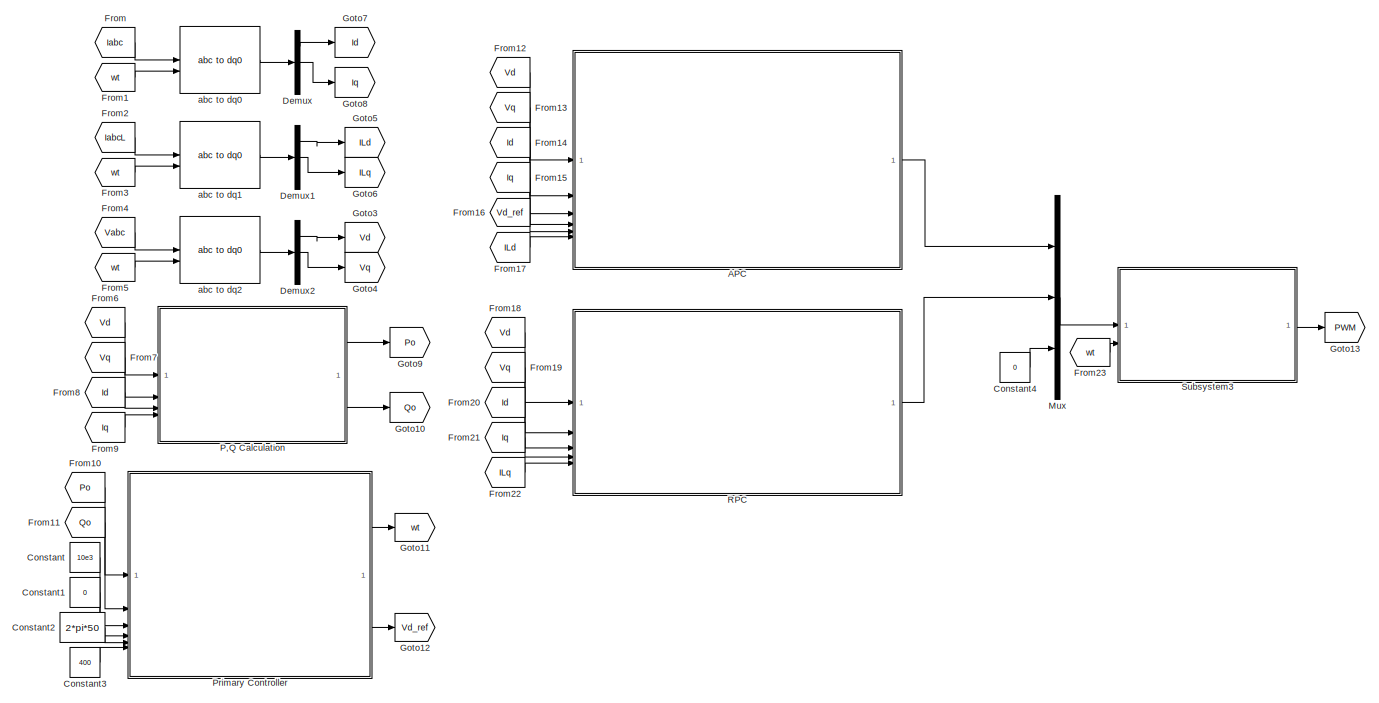
[diagram: root canvas - part 1/2, right side, full height]
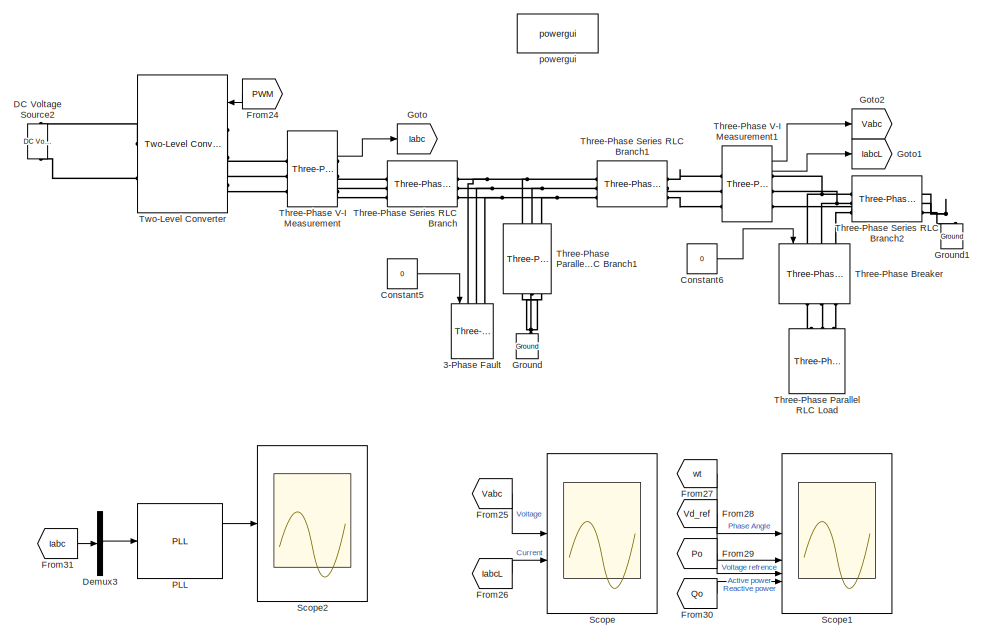
[diagram: root canvas - part 2/2, left side, full height]
MODEL slx_b3368cec2925
KIND model
CONFIG AbsTol = auto
CONFIG EnableMultiTasking = off
CONFIG FixedStep = auto
CONFIG MaxStep = 1e-4
CONFIG MinStep = auto
CONFIG RelTol = 1e-3
CONFIG SampleTimeConstraint = Unconstrained
CONFIG SolverName = ode23t
CONFIG StartTime = 0.0
CONFIG StopTime = 0.4
BLOCK [Reference] 3-Phase Fault  REF=spsThreePhaseFaultLib/Three-Phase Fault
  LibrarySourceBlock = sps_lib/Power Grid Elements/Three-Phase Fault
  NameLocation = right
  SourceBlock = spsThreePhaseFaultLib/Three-Phase Fault
  SourceType = Three-Phase Fault
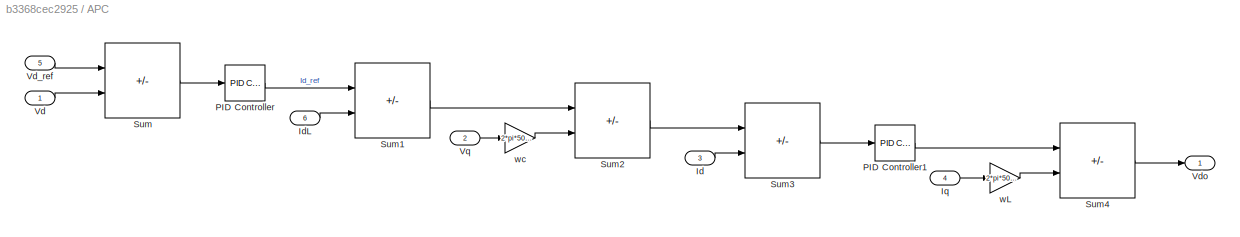
BLOCK [SubSystem] APC
BLOCK [Inport] APC/Id
  Port = 3
BLOCK [Inport] APC/IdL
  Port = 6
BLOCK [Inport] APC/Iq
  Port = 4
BLOCK [Reference] APC/PID Controller  REF=slpidlib/PID Controller
  LibrarySourceBlock = simulink/Continuous/PID Controller
  SourceBlock = slpidlib/PID Controller
  SourceType = PID 1dof
BLOCK [Reference] APC/PID Controller1  REF=slpidlib/PID Controller
  LibrarySourceBlock = simulink/Continuous/PID Controller
  SourceBlock = slpidlib/PID Controller
  SourceType = PID 1dof
BLOCK [Sum] APC/Sum
  IconShape = rectangular
  Inputs = +-
BLOCK [Sum] APC/Sum1
  IconShape = rectangular
  Inputs = +-
BLOCK [Sum] APC/Sum2
  IconShape = rectangular
  Inputs = +-
BLOCK [Sum] APC/Sum3
  IconShape = rectangular
  Inputs = +-
BLOCK [Sum] APC/Sum4
  IconShape = rectangular
  Inputs = +-
BLOCK [Inport] APC/Vd
BLOCK [Inport] APC/Vd_ref
  Port = 5
BLOCK [Outport] APC/Vdo
BLOCK [Inport] APC/Vq
  Port = 2
BLOCK [Gain] APC/wL
  Gain = 2*pi*50*10.2e-3
BLOCK [Gain] APC/wc
  Gain = 2*pi*50*9.94e-6
BLOCK [Constant] Constant
  Value = 10e3
BLOCK [Constant] Constant1
  Value = 0
BLOCK [Constant] Constant2
  Value = 2*pi*50
BLOCK [Constant] Constant3
  Value = 400
BLOCK [Constant] Constant4
  Value = 0
BLOCK [Constant] Constant5
  Value = 0
BLOCK [Constant] Constant6
  Value = 0
BLOCK [Reference] DC Voltage Source2  REF=spsDCVoltageSourceLib/DC Voltage Source
  LibrarySourceBlock = sps_lib/Sources/DC Voltage Source
  SourceBlock = spsDCVoltageSourceLib/DC Voltage Source
  SourceType = DC Voltage Source
BLOCK [Demux] Demux
  Outputs = 3
BLOCK [Demux] Demux1
  Outputs = 3
BLOCK [Demux] Demux2
  Outputs = 3
BLOCK [Demux] Demux3
  Outputs = 3
BLOCK [From] From
  GotoTag = Iabc
BLOCK [From] From1
  GotoTag = wt
BLOCK [From] From10
  GotoTag = Po
BLOCK [From] From11
  GotoTag = Qo
BLOCK [From] From12
  GotoTag = Vd
BLOCK [From] From13
  GotoTag = Vq
BLOCK [From] From14
  GotoTag = Id
BLOCK [From] From15
  GotoTag = Iq
BLOCK [From] From16
  GotoTag = Vd_ref
BLOCK [From] From17
  GotoTag = ILd
BLOCK [From] From18
  GotoTag = Vd
BLOCK [From] From19
  GotoTag = Vq
BLOCK [From] From2
  GotoTag = IabcL
BLOCK [From] From20
  GotoTag = Id
BLOCK [From] From21
  GotoTag = Iq
BLOCK [From] From22
  GotoTag = ILq
BLOCK [From] From23
  GotoTag = wt
BLOCK [From] From24
  GotoTag = PWM
BLOCK [From] From25
  GotoTag = Vabc
BLOCK [From] From26
  GotoTag = IabcL
BLOCK [From] From27
  GotoTag = wt
BLOCK [From] From28
  GotoTag = Vd_ref
BLOCK [From] From29
  GotoTag = Po
BLOCK [From] From3
  GotoTag = wt
BLOCK [From] From30
  GotoTag = Qo
BLOCK [From] From31
  GotoTag = Iabc
BLOCK [From] From4
  GotoTag = Vabc
BLOCK [From] From5
  GotoTag = wt
BLOCK [From] From6
  GotoTag = Vd
BLOCK [From] From7
  GotoTag = Vq
BLOCK [From] From8
  GotoTag = Id
BLOCK [From] From9
  GotoTag = Iq
BLOCK [Goto] Goto
  GotoTag = Iabc
  NameLocation = right
BLOCK [Goto] Goto1
  GotoTag = IabcL
  NameLocation = right
BLOCK [Goto] Goto10
  GotoTag = Qo
BLOCK [Goto] Goto11
  GotoTag = wt
BLOCK [Goto] Goto12
  GotoTag = Vd_ref
BLOCK [Goto] Goto13
  GotoTag = PWM
BLOCK [Goto] Goto2
  GotoTag = Vabc
  NameLocation = right
BLOCK [Goto] Goto3
  GotoTag = Vd
BLOCK [Goto] Goto4
  GotoTag = Vq
BLOCK [Goto] Goto5
  GotoTag = ILd
BLOCK [Goto] Goto6
  GotoTag = ILq
BLOCK [Goto] Goto7
  GotoTag = Id
BLOCK [Goto] Goto8
  GotoTag = Iq
BLOCK [Goto] Goto9
  GotoTag = Po
BLOCK [Reference] Ground  REF=spsGroundLib/Ground
  LibrarySourceBlock = sps_lib/Utilities/Ground
  NameLocation = right
  SourceBlock = spsGroundLib/Ground
  SourceType = Ground
BLOCK [Reference] Ground1  REF=spsGroundLib/Ground
  LibrarySourceBlock = sps_lib/Utilities/Ground
  NameLocation = right
  SourceBlock = spsGroundLib/Ground
  SourceType = Ground
BLOCK [Mux] Mux
  DisplayOption = bar
  Inputs = 3
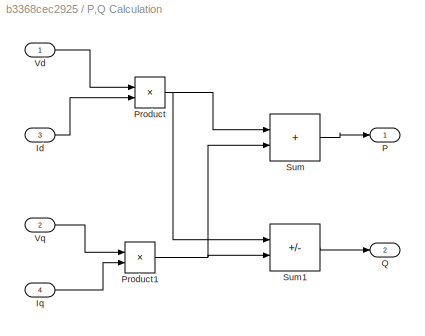
BLOCK [SubSystem] P,Q Calculation
BLOCK [Inport] P,Q Calculation/Id
  Port = 3
BLOCK [Inport] P,Q Calculation/Iq
  Port = 4
BLOCK [Outport] P,Q Calculation/P
BLOCK [Product] P,Q Calculation/Product
BLOCK [Product] P,Q Calculation/Product1
BLOCK [Outport] P,Q Calculation/Q
  Port = 2
BLOCK [Sum] P,Q Calculation/Sum
  IconShape = rectangular
BLOCK [Sum] P,Q Calculation/Sum1
  IconShape = rectangular
  Inputs = -+
BLOCK [Inport] P,Q Calculation/Vd
BLOCK [Inport] P,Q Calculation/Vq
  Port = 2
BLOCK [Reference] PLL  REF=spsPLLLib/PLL
  LibrarySourceBlock = sps_lib/Control/PLL
  SourceBlock = spsPLLLib/PLL
  SourceType = PLL
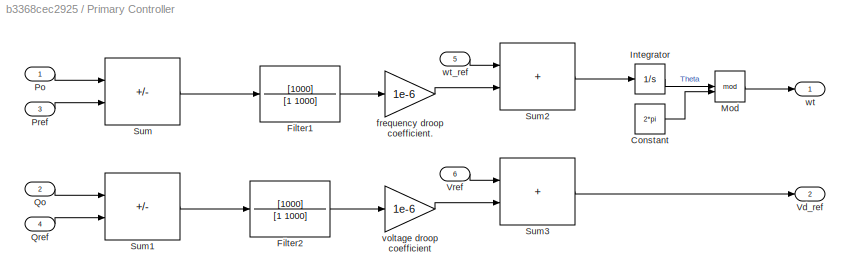
BLOCK [SubSystem] Primary Controller
BLOCK [Constant] Primary Controller/Constant
  Value = 2*pi
BLOCK [TransferFcn] Primary Controller/Filter1
  Denominator = [1 1000]
  Numerator = [1000]
BLOCK [TransferFcn] Primary Controller/Filter2
  Denominator = [1 1000]
  Numerator = [1000]
BLOCK [Integrator] Primary Controller/Integrator
BLOCK [Math] Primary Controller/Mod
  Operator = mod
BLOCK [Inport] Primary Controller/Po
BLOCK [Inport] Primary Controller/Pref
  Port = 3
BLOCK [Inport] Primary Controller/Qo
  Port = 2
BLOCK [Inport] Primary Controller/Qref
  Port = 4
BLOCK [Sum] Primary Controller/Sum
  IconShape = rectangular
  Inputs = -+
BLOCK [Sum] Primary Controller/Sum1
  IconShape = rectangular
  Inputs = -+
BLOCK [Sum] Primary Controller/Sum2
  IconShape = rectangular
BLOCK [Sum] Primary Controller/Sum3
  IconShape = rectangular
BLOCK [Outport] Primary Controller/Vd_ref
  Port = 2
BLOCK [Inport] Primary Controller/Vref
  Port = 6
BLOCK [Gain] Primary Controller/frequency droop coefficient.
  Gain = 1e-6
BLOCK [Gain] Primary Controller/voltage droop coefficient
  Gain = 1e-6
BLOCK [Outport] Primary Controller/wt
BLOCK [Inport] Primary Controller/wt_ref
  Port = 5
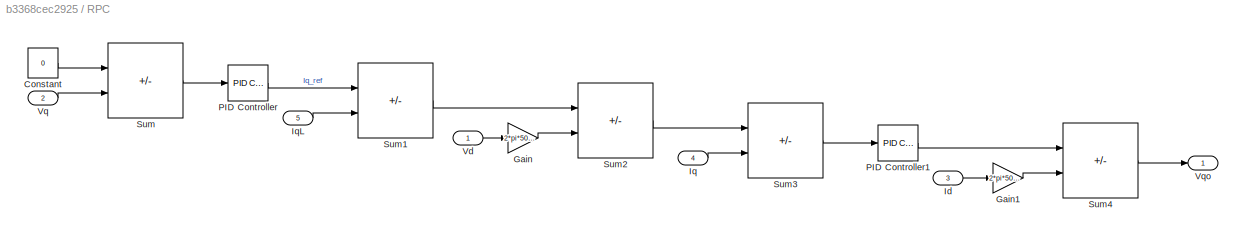
BLOCK [SubSystem] RPC
BLOCK [Constant] RPC/Constant
  Value = 0
BLOCK [Gain] RPC/Gain
  Gain = 2*pi*50*9.94e-6
BLOCK [Gain] RPC/Gain1
  Gain = 2*pi*50*10.2e-3
BLOCK [Inport] RPC/Id
  Port = 3
BLOCK [Inport] RPC/Iq
  Port = 4
BLOCK [Inport] RPC/IqL
  Port = 5
BLOCK [Reference] RPC/PID Controller  REF=slpidlib/PID Controller
  LibrarySourceBlock = simulink/Continuous/PID Controller
  SourceBlock = slpidlib/PID Controller
  SourceType = PID 1dof
BLOCK [Reference] RPC/PID Controller1  REF=slpidlib/PID Controller
  LibrarySourceBlock = simulink/Continuous/PID Controller
  SourceBlock = slpidlib/PID Controller
  SourceType = PID 1dof
BLOCK [Sum] RPC/Sum
  IconShape = rectangular
  Inputs = +-
BLOCK [Sum] RPC/Sum1
  IconShape = rectangular
  Inputs = +-
BLOCK [Sum] RPC/Sum2
  IconShape = rectangular
  Inputs = +-
BLOCK [Sum] RPC/Sum3
  IconShape = rectangular
  Inputs = +-
BLOCK [Sum] RPC/Sum4
  IconShape = rectangular
  Inputs = +-
BLOCK [Inport] RPC/Vd
BLOCK [Inport] RPC/Vq
  Port = 2
BLOCK [Outport] RPC/Vqo
BLOCK [Scope] Scope
  Floating = off
  NumInputPorts = 2
  ScopeSpecificationString = Simulink.scopes.TimeScopeBlockCfg('CurrentConfiguration', extmgr.ConfigurationSet(extmgr.Configuration('Core','General UI',true),extmgr.Configuration('Core','Source UI',true),extmgr.Configuration('Sources','WiredSimulink',true),extmgr.Configuration('Visuals','Time Domain',true,'SerializedDisplays',{struct('MinYLimReal','-759.79629','MaxYLimReal','754.65837','YLabelReal','','MinYLimMag',' 0.00000',...<+2939ch>
BLOCK [Scope] Scope1
  Floating = off
  NumInputPorts = 4
  ScopeSpecificationString = Simulink.scopes.TimeScopeBlockCfg('CurrentConfiguration', extmgr.ConfigurationSet(extmgr.Configuration('Core','General UI',true,'FigureColor',[0 0 0]),extmgr.Configuration('Core','Source UI',true),extmgr.Configuration('Sources','WiredSimulink',true,'DataLoggingVariableName','ScopeData1'),extmgr.Configuration('Visuals','Time Domain',true,'SerializedDisplays',{struct('MinYLimReal','-0.78539','MaxYLi...<+4254ch>
BLOCK [Scope] Scope2
  Floating = off
  NumInputPorts = 1
  ScopeSpecificationString = Simulink.scopes.TimeScopeBlockCfg('CurrentConfiguration', extmgr.ConfigurationSet(extmgr.Configuration('Core','General UI',true),extmgr.Configuration('Core','Source UI',true),extmgr.Configuration('Sources','WiredSimulink',true,'DataLoggingVariableName','ScopeData1'),extmgr.Configuration('Visuals','Time Domain',true,'SerializedDisplays',{struct('MinYLimReal','49.58386','MaxYLimReal','50.04624','YLa...<+2031ch>
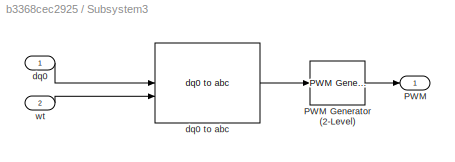
BLOCK [SubSystem] Subsystem3
BLOCK [Outport] Subsystem3/PWM
BLOCK [Reference] Subsystem3/PWM Generator (2-Level)  REF=spsPWMGenerator2LevelLib/PWM Generator
(2-Level)
  LibrarySourceBlock = sps_lib/Power Electronics/Power Electronics Control/PWM Generator\n(2-Level)
  SourceBlock = spsPWMGenerator2LevelLib/PWM Generator\n(2-Level)
  SourceType = PWM Generator (2-Level)
BLOCK [Inport] Subsystem3/dq0
BLOCK [Reference] Subsystem3/dq0 to abc  REF=spsdq0toabcLib/dq0 to abc
  LibrarySourceBlock = sps_lib/Control/dq0 to abc
  SourceBlock = spsdq0toabcLib/dq0 to abc
  SourceType = dq0 to abc Transformation
BLOCK [Inport] Subsystem3/wt
  Port = 2
BLOCK [Reference] Three-Phase Breaker  REF=spsThreePhaseBreakerLib/Three-Phase Breaker
  LibrarySourceBlock = sps_lib/Power Grid Elements/Three-Phase Breaker
  NameLocation = left
  SourceBlock = spsThreePhaseBreakerLib/Three-Phase Breaker
  SourceType = Three-Phase Breaker
BLOCK [Reference] Three-Phase Parallel RLC Branch1  REF=spsThreePhaseParallelRLCBranchLib/Three-Phase
Parallel RLC Branch
  AttributesFormatString = \n
  LibrarySourceBlock = sps_lib/Passives/Three-Phase\nParallel RLC Branch
  NameLocation = left
  SourceBlock = spsThreePhaseParallelRLCBranchLib/Three-Phase\nParallel RLC Branch
  SourceType = Three-Phase Parallel RLC Branch
BLOCK [Reference] Three-Phase Parallel RLC Load  REF=spsThreePhaseParallelRLCLoadLib/Three-Phase
Parallel RLC Load
  AttributesFormatString = \n
  LibrarySourceBlock = sps_lib/Passives/Three-Phase\nParallel RLC Load
  NameLocation = right
  SourceBlock = spsThreePhaseParallelRLCLoadLib/Three-Phase\nParallel RLC Load
  SourceType = Three-Phase Parallel RLC Load
BLOCK [Reference] Three-Phase Series RLC Branch  REF=spsThreePhaseSeriesRLCBranchLib/Three-Phase
Series RLC Branch
  AttributesFormatString = \n
  LibrarySourceBlock = sps_lib/Passives/Three-Phase\nSeries RLC Branch
  SourceBlock = spsThreePhaseSeriesRLCBranchLib/Three-Phase\nSeries RLC Branch
  SourceType = Three-Phase Series RLC Branch
BLOCK [Reference] Three-Phase Series RLC Branch1  REF=spsThreePhaseSeriesRLCBranchLib/Three-Phase
Series RLC Branch
  AttributesFormatString = \n
  LibrarySourceBlock = sps_lib/Passives/Three-Phase\nSeries RLC Branch
  SourceBlock = spsThreePhaseSeriesRLCBranchLib/Three-Phase\nSeries RLC Branch
  SourceType = Three-Phase Series RLC Branch
BLOCK [Reference] Three-Phase Series RLC Branch2  REF=spsThreePhaseSeriesRLCBranchLib/Three-Phase
Series RLC Branch
  AttributesFormatString = \n
  LibrarySourceBlock = sps_lib/Passives/Three-Phase\nSeries RLC Branch
  SourceBlock = spsThreePhaseSeriesRLCBranchLib/Three-Phase\nSeries RLC Branch
  SourceType = Three-Phase Series RLC Branch
BLOCK [Reference] Three-Phase V-I Measurement  REF=spsThreePhaseVIMeasurementLib/Three-Phase
V-I Measurement
  LibrarySourceBlock = sps_lib/Sensors and Measurements/Three-Phase\nV-I Measurement
  SourceBlock = spsThreePhaseVIMeasurementLib/Three-Phase\nV-I Measurement
  SourceType = Three-Phase VI Measurement
BLOCK [Reference] Three-Phase V-I Measurement1  REF=spsThreePhaseVIMeasurementLib/Three-Phase
V-I Measurement
  LibrarySourceBlock = sps_lib/Sensors and Measurements/Three-Phase\nV-I Measurement
  SourceBlock = spsThreePhaseVIMeasurementLib/Three-Phase\nV-I Measurement
  SourceType = Three-Phase VI Measurement
BLOCK [Reference] Two-Level Converter  REF=spsTwoLevelConverterLib/Two-Level Converter
  LibrarySourceBlock = sps_lib/Power Electronics/Two-Level Converter
  SourceBlock = spsTwoLevelConverterLib/Two-Level Converter
  SourceType = Two-Level Converter
BLOCK [Reference] abc to dq0  REF=spsabctodq0Lib/abc to dq0
  LibrarySourceBlock = sps_lib/Control/abc to dq0
  SourceBlock = spsabctodq0Lib/abc to dq0
  SourceType = abc to dq0 Transformation
BLOCK [Reference] abc to dq1  REF=spsabctodq0Lib/abc to dq0
  LibrarySourceBlock = sps_lib/Control/abc to dq0
  SourceBlock = spsabctodq0Lib/abc to dq0
  SourceType = abc to dq0 Transformation
BLOCK [Reference] abc to dq2  REF=spsabctodq0Lib/abc to dq0
  LibrarySourceBlock = sps_lib/Control/abc to dq0
  SourceBlock = spsabctodq0Lib/abc to dq0
  SourceType = abc to dq0 Transformation
BLOCK [Reference] powergui  REF=sps_lib/powergui
  Priority = 1
  SourceBlock = sps_lib/powergui
  SourceType = PSB option menu block
LINE APC/Id:1 -> APC/Sum3:2
LINE APC/IdL:1 -> APC/Sum1:2
LINE APC/Iq:1 -> APC/wL:1
LINE APC/PID Controller1:1 -> APC/Sum4:1
LINE APC/PID Controller:1 -> APC/Sum1:1
LINE APC/Sum1:1 -> APC/Sum2:1
LINE APC/Sum2:1 -> APC/Sum3:1
LINE APC/Sum3:1 -> APC/PID Controller1:1
LINE APC/Sum4:1 -> APC/Vdo:1
LINE APC/Sum:1 -> APC/PID Controller:1
LINE APC/Vd:1 -> APC/Sum:2
LINE APC/Vd_ref:1 -> APC/Sum:1
LINE APC/Vq:1 -> APC/wc:1
LINE APC/wL:1 -> APC/Sum4:2
LINE APC/wc:1 -> APC/Sum2:2
LINE APC:1 -> Mux:1
LINE Constant1:1 -> Primary Controller:4
LINE Constant2:1 -> Primary Controller:5
LINE Constant3:1 -> Primary Controller:6
LINE Constant4:1 -> Mux:3
LINE Constant5:1 -> 3-Phase Fault:1
LINE Constant6:1 -> Three-Phase Breaker:1
LINE Constant:1 -> Primary Controller:3
LINE Demux1:1 -> Goto5:1
LINE Demux1:2 -> Goto6:1
LINE Demux2:1 -> Goto3:1
LINE Demux2:2 -> Goto4:1
LINE Demux3:2 -> PLL:1
LINE Demux:1 -> Goto7:1
LINE Demux:2 -> Goto8:1
LINE From10:1 -> Primary Controller:1
LINE From11:1 -> Primary Controller:2
LINE From12:1 -> APC:1
LINE From13:1 -> APC:2
LINE From14:1 -> APC:3
LINE From15:1 -> APC:4
LINE From16:1 -> APC:5
LINE From17:1 -> APC:6
LINE From18:1 -> RPC:1
LINE From19:1 -> RPC:2
LINE From1:1 -> abc to dq0:2
LINE From20:1 -> RPC:3
LINE From21:1 -> RPC:4
LINE From22:1 -> RPC:5
LINE From23:1 -> Subsystem3:2
LINE From24:1 -> Two-Level Converter:1
LINE From25:1 -> Scope:1
LINE From26:1 -> Scope:2
LINE From27:1 -> Scope1:1
LINE From28:1 -> Scope1:2
LINE From29:1 -> Scope1:3
LINE From2:1 -> abc to dq1:1
LINE From30:1 -> Scope1:4
LINE From31:1 -> Demux3:1
LINE From3:1 -> abc to dq1:2
LINE From4:1 -> abc to dq2:1
LINE From5:1 -> abc to dq2:2
LINE From6:1 -> P,Q Calculation:1
LINE From7:1 -> P,Q Calculation:2
LINE From8:1 -> P,Q Calculation:3
LINE From9:1 -> P,Q Calculation:4
LINE From:1 -> abc to dq0:1
LINE Mux:1 -> Subsystem3:1
LINE P,Q Calculation/Id:1 -> P,Q Calculation/Product:2
LINE P,Q Calculation/Iq:1 -> P,Q Calculation/Product1:2
NET P,Q Calculation/Product1:1 -> P,Q Calculation/Sum1:2, P,Q Calculation/Sum:2
NET P,Q Calculation/Product:1 -> P,Q Calculation/Sum1:1, P,Q Calculation/Sum:1
LINE P,Q Calculation/Sum1:1 -> P,Q Calculation/Q:1
LINE P,Q Calculation/Sum:1 -> P,Q Calculation/P:1
LINE P,Q Calculation/Vd:1 -> P,Q Calculation/Product:1
LINE P,Q Calculation/Vq:1 -> P,Q Calculation/Product1:1
LINE P,Q Calculation:1 -> Goto9:1
LINE P,Q Calculation:2 -> Goto10:1
LINE PLL:1 -> Scope2:1
LINE Primary Controller/Constant:1 -> Primary Controller/Mod:2
LINE Primary Controller/Filter1:1 -> Primary Controller/frequency droop coefficient.:1
LINE Primary Controller/Filter2:1 -> Primary Controller/voltage droop coefficient:1
LINE Primary Controller/Integrator:1 -> Primary Controller/Mod:1
LINE Primary Controller/Mod:1 -> Primary Controller/wt:1
LINE Primary Controller/Po:1 -> Primary Controller/Sum:1
LINE Primary Controller/Pref:1 -> Primary Controller/Sum:2
LINE Primary Controller/Qo:1 -> Primary Controller/Sum1:1
LINE Primary Controller/Qref:1 -> Primary Controller/Sum1:2
LINE Primary Controller/Sum1:1 -> Primary Controller/Filter2:1
LINE Primary Controller/Sum2:1 -> Primary Controller/Integrator:1
LINE Primary Controller/Sum3:1 -> Primary Controller/Vd_ref:1
LINE Primary Controller/Sum:1 -> Primary Controller/Filter1:1
LINE Primary Controller/Vref:1 -> Primary Controller/Sum3:1
LINE Primary Controller/frequency droop coefficient.:1 -> Primary Controller/Sum2:2
LINE Primary Controller/voltage droop coefficient:1 -> Primary Controller/Sum3:2
LINE Primary Controller/wt_ref:1 -> Primary Controller/Sum2:1
LINE Primary Controller:1 -> Goto11:1
LINE Primary Controller:2 -> Goto12:1
LINE RPC/Constant:1 -> RPC/Sum:1
LINE RPC/Gain1:1 -> RPC/Sum4:2
LINE RPC/Gain:1 -> RPC/Sum2:2
LINE RPC/Id:1 -> RPC/Gain1:1
LINE RPC/Iq:1 -> RPC/Sum3:2
LINE RPC/IqL:1 -> RPC/Sum1:2
LINE RPC/PID Controller1:1 -> RPC/Sum4:1
LINE RPC/PID Controller:1 -> RPC/Sum1:1
LINE RPC/Sum1:1 -> RPC/Sum2:1
LINE RPC/Sum2:1 -> RPC/Sum3:1
LINE RPC/Sum3:1 -> RPC/PID Controller1:1
LINE RPC/Sum4:1 -> RPC/Vqo:1
LINE RPC/Sum:1 -> RPC/PID Controller:1
LINE RPC/Vd:1 -> RPC/Gain:1
LINE RPC/Vq:1 -> RPC/Sum:2
LINE RPC:1 -> Mux:2
LINE Subsystem3/PWM Generator (2-Level):1 -> Subsystem3/PWM:1
LINE Subsystem3/dq0 to abc:1 -> Subsystem3/PWM Generator (2-Level):1
LINE Subsystem3/dq0:1 -> Subsystem3/dq0 to abc:1
LINE Subsystem3/wt:1 -> Subsystem3/dq0 to abc:2
LINE Subsystem3:1 -> Goto13:1
LINE Three-Phase V-I Measurement1:1 -> Goto2:1
LINE Three-Phase V-I Measurement1:2 -> Goto1:1
LINE Three-Phase V-I Measurement:2 -> Goto:1
LINE abc to dq0:1 -> Demux:1
LINE abc to dq1:1 -> Demux1:1
LINE abc to dq2:1 -> Demux2:1
PNET net1: 3-Phase Fault:LConn1 -- Three-Phase Parallel RLC Branch1:LConn1 -- Three-Phase Series RLC Branch1:LConn1 -- Three-Phase Series RLC Branch:RConn1
PNET net2: 3-Phase Fault:LConn2 -- Three-Phase Parallel RLC Branch1:LConn2 -- Three-Phase Series RLC Branch1:LConn2 -- Three-Phase Series RLC Branch:RConn2
PNET net3: 3-Phase Fault:LConn3 -- Three-Phase Parallel RLC Branch1:LConn3 -- Three-Phase Series RLC Branch1:LConn3 -- Three-Phase Series RLC Branch:RConn3
PLINE DC Voltage Source2:LConn1 -- Two-Level Converter:RConn2
PLINE DC Voltage Source2:RConn1 -- Two-Level Converter:RConn1
PNET net4: Ground1:LConn1 -- Three-Phase Series RLC Branch2:RConn1 -- Three-Phase Series RLC Branch2:RConn2 -- Three-Phase Series RLC Branch2:RConn3
PNET net5: Ground:LConn1 -- Three-Phase Parallel RLC Branch1:RConn1 -- Three-Phase Parallel RLC Branch1:RConn2 -- Three-Phase Parallel RLC Branch1:RConn3
PNET net6: Three-Phase Breaker:LConn1 -- Three-Phase Series RLC Branch2:LConn1 -- Three-Phase V-I Measurement1:RConn1
PNET net7: Three-Phase Breaker:LConn2 -- Three-Phase Series RLC Branch2:LConn2 -- Three-Phase V-I Measurement1:RConn2
PNET net8: Three-Phase Breaker:LConn3 -- Three-Phase Series RLC Branch2:LConn3 -- Three-Phase V-I Measurement1:RConn3
PLINE Three-Phase Breaker:RConn1 -- Three-Phase Parallel RLC Load:LConn1
PLINE Three-Phase Breaker:RConn2 -- Three-Phase Parallel RLC Load:LConn2
PLINE Three-Phase Breaker:RConn3 -- Three-Phase Parallel RLC Load:LConn3
PLINE Three-Phase Series RLC Branch1:RConn1 -- Three-Phase V-I Measurement1:LConn1
PLINE Three-Phase Series RLC Branch1:RConn2 -- Three-Phase V-I Measurement1:LConn2
PLINE Three-Phase Series RLC Branch1:RConn3 -- Three-Phase V-I Measurement1:LConn3
PLINE Three-Phase Series RLC Branch:LConn1 -- Three-Phase V-I Measurement:RConn1
PLINE Three-Phase Series RLC Branch:LConn2 -- Three-Phase V-I Measurement:RConn2
PLINE Three-Phase Series RLC Branch:LConn3 -- Three-Phase V-I Measurement:RConn3
PLINE Three-Phase V-I Measurement:LConn1 -- Two-Level Converter:LConn1
PLINE Three-Phase V-I Measurement:LConn2 -- Two-Level Converter:LConn2
PLINE Three-Phase V-I Measurement:LConn3 -- Two-Level Converter:LConn3
note: NET lines group one-source signal fan-out (src -> all destinations, sorted); 1:1 wires keep LINE; PNET lines group multi-terminal physical nets as a canonical sorted terminal list (undirected conserving connections); 2-terminal nets keep the pairwise PLINE form
